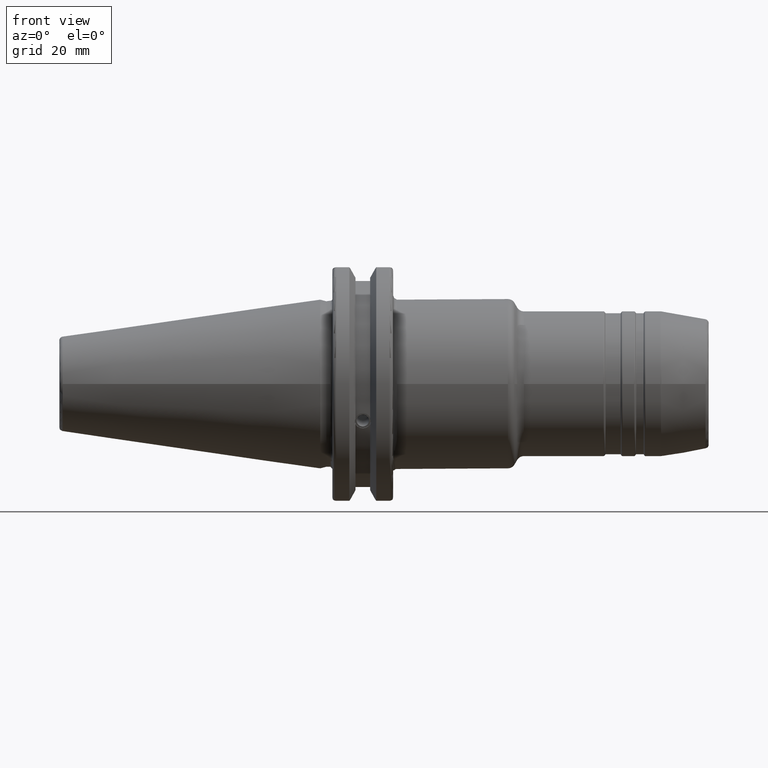
[diagram: clean part render]
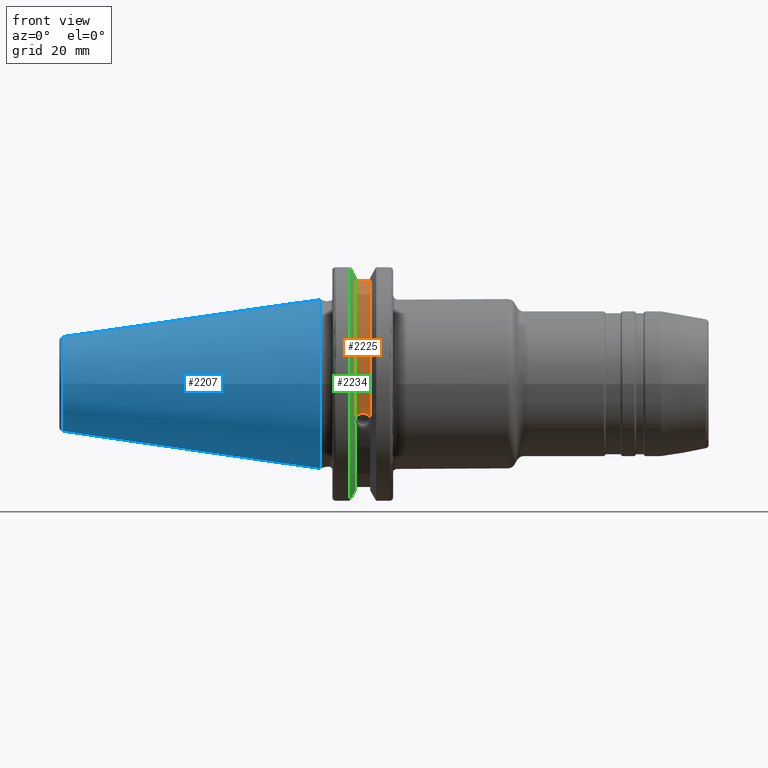
[diagram: same view with three faces highlighted in distinct colors, each labeled with its STEP entity id]
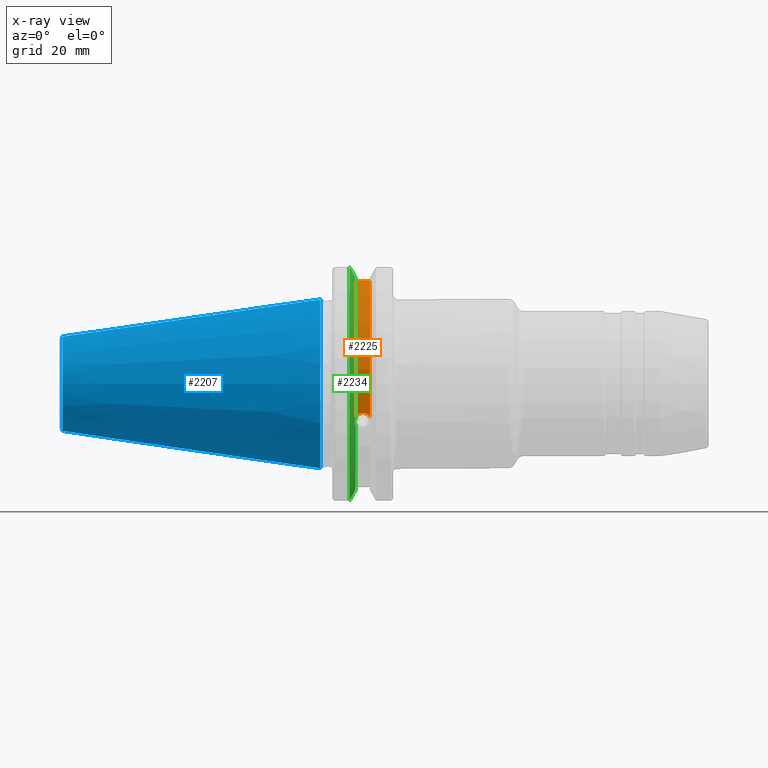
[diagram: x-ray of the same camera — body ghosted, the three highlighted faces saturated]
A machine part, front view with three faces highlighted in distinct colors.
The next image is the same camera in x-ray (body ghosted, the three faces saturated) — at least one of them is partly hidden behind the body in this view.
Their STEP definitions:

[orange] entity #2225 — the highlighted cylindrical surface (partial cylindrical patch) has radius 28.15 mm, axis along (1, 0, 0).
#145=B_SPLINE_CURVE_WITH_KNOTS('',3,(#3657,#3658,#3659,#3660,#3661,#3662,
#3663,#3664,#3665,#3666,#3667,#3668,#3669,#3670),.UNSPECIFIED.,.F.,.F.,
(4,2,2,2,2,2,4),(0.401639126382404,0.474814416953736,0.553950208498303,
0.63308600004287,0.712221791587437,0.791357583132004,0.864532873703336),
 .UNSPECIFIED.);
#267=FACE_OUTER_BOUND('',#388,.T.);
#388=EDGE_LOOP('',(#2034,#2035,#2036,#2037));
#477=LINE('',#4119,#582);
#582=VECTOR('',#3120,10.);
#783=CIRCLE('',#2544,28.15);
#784=CIRCLE('',#2545,28.15);
#899=VERTEX_POINT('',#3654);
#900=VERTEX_POINT('',#3656);
#1007=VERTEX_POINT('',#4116);
#1008=VERTEX_POINT('',#4118);
#1184=EDGE_CURVE('',#900,#899,#145,.T.);
#1324=EDGE_CURVE('',#1008,#1007,#477,.T.);
#1381=EDGE_CURVE('',#1008,#899,#783,.T.);
#1382=EDGE_CURVE('',#1007,#900,#784,.T.);
#2034=ORIENTED_EDGE('',*,*,#1184,.T.);
#2035=ORIENTED_EDGE('',*,*,#1381,.F.);
#2036=ORIENTED_EDGE('',*,*,#1324,.T.);
#2037=ORIENTED_EDGE('',*,*,#1382,.T.);
#2126=CYLINDRICAL_SURFACE('',#2543,28.15);
#2225=ADVANCED_FACE('',(#267),#2126,.T.);
#2543=AXIS2_PLACEMENT_3D('',#4279,#3240,#3241);
#2544=AXIS2_PLACEMENT_3D('',#4280,#3242,#3243);
#2545=AXIS2_PLACEMENT_3D('',#4281,#3244,#3245);
#3120=DIRECTION('',(-1.,0.,0.));
#3240=DIRECTION('center_axis',(1.,0.,0.));
#3241=DIRECTION('ref_axis',(0.,-0.887654187951484,0.46051063246378));
#3242=DIRECTION('center_axis',(1.,0.,0.));
#3243=DIRECTION('ref_axis',(0.,0.,-1.));
#3244=DIRECTION('center_axis',(1.,0.,0.));
#3245=DIRECTION('ref_axis',(0.,0.,-1.));
#3654=CARTESIAN_POINT('',(13.0491,-26.734714844398,-8.81348524641211));
#3656=CARTESIAN_POINT('',(9.2191,-26.734714844398,-8.81348524641212));
#3657=CARTESIAN_POINT('Ctrl Pts',(9.2191,-26.734714844398,-8.81348524641212));
#3658=CARTESIAN_POINT('Ctrl Pts',(9.32533057097183,-26.8086519721597,-8.58920529678291));
#3659=CARTESIAN_POINT('Ctrl Pts',(9.47682013770509,-26.8729987454904,-8.38416529997369));
#3660=CARTESIAN_POINT('Ctrl Pts',(9.83557062657411,-26.9778908791383,-8.04056861831091));
#3661=CARTESIAN_POINT('Ctrl Pts',(10.0716450112988,-27.0233016799732,-7.88512567185902));
#3662=CARTESIAN_POINT('Ctrl Pts',(10.5890125426388,-27.0826966800569,-7.6786444840004));
#3663=CARTESIAN_POINT('Ctrl Pts',(10.8703140281848,-27.0968804077294,-7.62768458768512));
#3664=CARTESIAN_POINT('Ctrl Pts',(11.3978859718152,-27.0968804077294,-7.62768458768512));
#3665=CARTESIAN_POINT('Ctrl Pts',(11.6791874573612,-27.0826966800569,-7.6786444840004));
#3666=CARTESIAN_POINT('Ctrl Pts',(12.1965549887012,-27.0233016799732,-7.88512567185902));
#3667=CARTESIAN_POINT('Ctrl Pts',(12.4326293734259,-26.9778908791383,-8.04056861831091));
#3668=CARTESIAN_POINT('Ctrl Pts',(12.7913798622949,-26.8729987454904,-8.38416529997369));
#3669=CARTESIAN_POINT('Ctrl Pts',(12.9428694290282,-26.8086519721597,-8.58920529678291));
#3670=CARTESIAN_POINT('Ctrl Pts',(13.0491,-26.734714844398,-8.81348524641211));
#4116=CARTESIAN_POINT('',(9.2191,-8.19,26.932255754021));
#4118=CARTESIAN_POINT('',(13.0491,-8.19,26.932255754021));
#4119=CARTESIAN_POINT('',(11.1341,-8.19,26.932255754021));
#4279=CARTESIAN_POINT('Origin',(11.1341,0.,0.));
#4280=CARTESIAN_POINT('Origin',(13.0491,0.,0.));
#4281=CARTESIAN_POINT('Origin',(9.2191,0.,0.));

[blue] entity #2207 — the highlighted conical surface has half-angle 8.297 deg.
#98=CONICAL_SURFACE('',#2516,17.2484375,0.144812498238939);
#249=FACE_OUTER_BOUND('',#370,.T.);
#370=EDGE_LOOP('',(#1946,#1947,#1948,#1949,#1950,#1951,#1952));
#486=LINE('',#4222,#591);
#591=VECTOR('',#3175,17.2484375);
#766=CIRCLE('',#2507,12.3966635780937);
#767=CIRCLE('',#2508,12.3966635780937);
#771=CIRCLE('',#2512,12.3966635780937);
#774=CIRCLE('',#2517,22.225);
#775=CIRCLE('',#2518,22.225);
#1018=VERTEX_POINT('',#4201);
#1019=VERTEX_POINT('',#4202);
#1020=VERTEX_POINT('',#4204);
#1025=VERTEX_POINT('',#4218);
#1026=VERTEX_POINT('',#4219);
#1345=EDGE_CURVE('',#1018,#1019,#766,.T.);
#1346=EDGE_CURVE('',#1019,#1020,#767,.T.);
#1350=EDGE_CURVE('',#1020,#1018,#771,.T.);
#1353=EDGE_CURVE('',#1025,#1026,#774,.T.);
#1354=EDGE_CURVE('',#1026,#1025,#775,.T.);
#1355=EDGE_CURVE('',#1026,#1019,#486,.T.);
#1946=ORIENTED_EDGE('',*,*,#1353,.F.);
#1947=ORIENTED_EDGE('',*,*,#1354,.F.);
#1948=ORIENTED_EDGE('',*,*,#1355,.T.);
#1949=ORIENTED_EDGE('',*,*,#1345,.F.);
#1950=ORIENTED_EDGE('',*,*,#1350,.F.);
#1951=ORIENTED_EDGE('',*,*,#1346,.F.);
#1952=ORIENTED_EDGE('',*,*,#1355,.F.);
#2207=ADVANCED_FACE('',(#249),#98,.T.);
#2507=AXIS2_PLACEMENT_3D('',#4203,#3151,#3152);
#2508=AXIS2_PLACEMENT_3D('',#4205,#3153,#3154);
#2512=AXIS2_PLACEMENT_3D('',#4211,#3161,#3162);
#2516=AXIS2_PLACEMENT_3D('',#4217,#3169,#3170);
#2517=AXIS2_PLACEMENT_3D('',#4220,#3171,#3172);
#2518=AXIS2_PLACEMENT_3D('',#4221,#3173,#3174);
#3151=DIRECTION('center_axis',(-1.,0.,0.));
#3152=DIRECTION('ref_axis',(0.,-1.,3.06161699786838E-17));
#3153=DIRECTION('center_axis',(-1.,0.,0.));
#3154=DIRECTION('ref_axis',(0.,-1.,3.06161699786838E-17));
#3161=DIRECTION('center_axis',(-1.,0.,0.));
#3162=DIRECTION('ref_axis',(0.,-1.,3.06161699786838E-17));
#3169=DIRECTION('center_axis',(1.,0.,0.));
#3170=DIRECTION('ref_axis',(0.,1.,0.));
#3171=DIRECTION('center_axis',(1.,0.,0.));
#3172=DIRECTION('ref_axis',(0.,0.,-1.));
#3173=DIRECTION('center_axis',(1.,0.,0.));
#3174=DIRECTION('ref_axis',(0.,0.,-1.));
#3175=DIRECTION('',(-0.989532981063282,0.144306893071729,1.76724974695192E-17));
#4201=CARTESIAN_POINT('',(-67.3943068930717,12.3966635780937,-3.79538359275475E-15));
#4202=CARTESIAN_POINT('',(-67.3943068930718,-12.3966635780937,-1.5181534371019E-15));
#4203=CARTESIAN_POINT('Origin',(-67.3943068930717,0.,-1.89769179637738E-15));
#4204=CARTESIAN_POINT('',(-67.3943068930717,-1.5181534371019E-15,12.3966635780937));
#4205=CARTESIAN_POINT('Origin',(-67.3943068930717,0.,-1.89769179637738E-15));
#4211=CARTESIAN_POINT('Origin',(-67.3943068930717,0.,-1.89769179637738E-15));
#4217=CARTESIAN_POINT('Origin',(-34.125,0.,0.));
#4218=CARTESIAN_POINT('',(0.,22.225,0.));
#4219=CARTESIAN_POINT('',(0.,-22.225,-2.72177751110499E-15));
#4220=CARTESIAN_POINT('Origin',(0.,0.,0.));
#4221=CARTESIAN_POINT('Origin',(0.,0.,0.));
#4222=CARTESIAN_POINT('',(-34.125,-17.2484375,-2.11232437746682E-15));

[green] entity #2234 — the highlighted conical surface has half-angle 60 deg.
#25=(
BOUNDED_CURVE()
B_SPLINE_CURVE(2,(#4113,#4114,#4115),.UNSPECIFIED.,.F.,.F.)
B_SPLINE_CURVE_WITH_KNOTS((3,3),(0.,0.276549142796136),.UNSPECIFIED.)
CURVE()
GEOMETRIC_REPRESENTATION_ITEM()
RATIONAL_B_SPLINE_CURVE((1.,1.00095203903316,1.00031614444813))
REPRESENTATION_ITEM('')
);
#26=(
BOUNDED_CURVE()
B_SPLINE_CURVE(2,(#4125,#4126,#4127),.UNSPECIFIED.,.F.,.F.)
B_SPLINE_CURVE_WITH_KNOTS((3,3),(0.0550586467392022,0.33160778953585),
 .UNSPECIFIED.)
CURVE()
GEOMETRIC_REPRESENTATION_ITEM()
RATIONAL_B_SPLINE_CURVE((1.00031614445148,1.00095203904325,1.))
REPRESENTATION_ITEM('')
);
#27=(
BOUNDED_CURVE()
B_SPLINE_CURVE(2,(#4160,#4161,#4162),.UNSPECIFIED.,.F.,.F.)
B_SPLINE_CURVE_WITH_KNOTS((3,3),(0.,0.0639048713676282),.UNSPECIFIED.)
CURVE()
GEOMETRIC_REPRESENTATION_ITEM()
RATIONAL_B_SPLINE_CURVE((1.,1.00028444218284,1.00047644010574))
REPRESENTATION_ITEM('')
);
#28=(
BOUNDED_CURVE()
B_SPLINE_CURVE(2,(#4168,#4169,#4170),.UNSPECIFIED.,.F.,.F.)
B_SPLINE_CURVE_WITH_KNOTS((3,3),(0.329353533631205,0.393258405001025),
 .UNSPECIFIED.)
CURVE()
GEOMETRIC_REPRESENTATION_ITEM()
RATIONAL_B_SPLINE_CURVE((1.00047644010572,1.00028444218283,1.))
REPRESENTATION_ITEM('')
);
#103=CONICAL_SURFACE('',#2559,30.3546886482472,1.0471975511966);
#146=B_SPLINE_CURVE_WITH_KNOTS('',3,(#3674,#3675,#3676,#3677,#3678,#3679,
#3680,#3681,#3682,#3683,#3684,#3685,#3686,#3687),.UNSPECIFIED.,.F.,.F.,
(4,2,2,2,2,2,4),(0.451995700189024,0.464547828547662,0.504528771685167,
0.544509714822672,0.584490657960178,0.624471601097683,0.63702372945632),
 .UNSPECIFIED.);
#276=FACE_OUTER_BOUND('',#399,.T.);
#399=EDGE_LOOP('',(#2082,#2083,#2084,#2085,#2086,#2087,#2088,#2089));
#729=CIRCLE('',#2429,28.9593772964944);
#764=CIRCLE('',#2501,31.75);
#790=CIRCLE('',#2560,28.9593772964944);
#901=VERTEX_POINT('',#3671);
#902=VERTEX_POINT('',#3673);
#922=VERTEX_POINT('',#3771);
#1005=VERTEX_POINT('',#4110);
#1006=VERTEX_POINT('',#4112);
#1009=VERTEX_POINT('',#4124);
#1013=VERTEX_POINT('',#4158);
#1014=VERTEX_POINT('',#4164);
#1186=EDGE_CURVE('',#902,#901,#146,.T.);
#1213=EDGE_CURVE('',#902,#922,#729,.T.);
#1322=EDGE_CURVE('',#1006,#1005,#25,.T.);
#1328=EDGE_CURVE('',#1009,#922,#26,.T.);
#1336=EDGE_CURVE('',#1013,#1005,#27,.T.);
#1338=EDGE_CURVE('',#1013,#1014,#764,.T.);
#1339=EDGE_CURVE('',#1009,#1014,#28,.T.);
#1391=EDGE_CURVE('',#1006,#901,#790,.T.);
#2082=ORIENTED_EDGE('',*,*,#1186,.T.);
#2083=ORIENTED_EDGE('',*,*,#1391,.F.);
#2084=ORIENTED_EDGE('',*,*,#1322,.T.);
#2085=ORIENTED_EDGE('',*,*,#1336,.F.);
#2086=ORIENTED_EDGE('',*,*,#1338,.T.);
#2087=ORIENTED_EDGE('',*,*,#1339,.F.);
#2088=ORIENTED_EDGE('',*,*,#1328,.T.);
#2089=ORIENTED_EDGE('',*,*,#1213,.F.);
#2234=ADVANCED_FACE('',(#276),#103,.T.);
#2429=AXIS2_PLACEMENT_3D('',#3772,#2940,#2941);
#2501=AXIS2_PLACEMENT_3D('',#4166,#3138,#3139);
#2559=AXIS2_PLACEMENT_3D('',#4302,#3275,#3276);
#2560=AXIS2_PLACEMENT_3D('',#4303,#3277,#3278);
#2940=DIRECTION('center_axis',(1.,0.,0.));
#2941=DIRECTION('ref_axis',(0.,0.,-1.));
#3138=DIRECTION('center_axis',(1.,0.,0.));
#3139=DIRECTION('ref_axis',(0.,0.,-1.));
#3275=DIRECTION('center_axis',(-1.,0.,0.));
#3276=DIRECTION('ref_axis',(0.,-1.,-1.22464679914735E-16));
#3277=DIRECTION('center_axis',(1.,0.,0.));
#3278=DIRECTION('ref_axis',(0.,0.,-1.));
#3671=CARTESIAN_POINT('',(9.2191,-27.4956274489925,-9.09043478536245));
#3673=CARTESIAN_POINT('',(9.2191,-26.9060914640648,-10.7101715919071));
#3674=CARTESIAN_POINT('Ctrl Pts',(9.2191,-26.9060914640648,-10.7101715919071));
#3675=CARTESIAN_POINT('Ctrl Pts',(9.20497959280038,-26.9406927482839,-10.6893765730703));
#3676=CARTESIAN_POINT('Ctrl Pts',(9.19150701821434,-26.9744191989197,-10.6676007180673));
#3677=CARTESIAN_POINT('Ctrl Pts',(9.13811855884095,-27.1113422433189,-10.5723885976054));
#3678=CARTESIAN_POINT('Ctrl Pts',(9.09998029158246,-27.2180531796526,-10.4801333026531));
#3679=CARTESIAN_POINT('Ctrl Pts',(9.04778935539424,-27.3968610665578,-10.2639559818059));
#3680=CARTESIAN_POINT('Ctrl Pts',(9.0341,-27.4684373304961,-10.139516340139));
#3681=CARTESIAN_POINT('Ctrl Pts',(9.0341,-27.559599249844,-9.8890510252165));
#3682=CARTESIAN_POINT('Ctrl Pts',(9.04778935539424,-27.5847569104122,-9.74771639360671));
#3683=CARTESIAN_POINT('Ctrl Pts',(9.09998029158246,-27.5867382255984,-9.46717946402648));
#3684=CARTESIAN_POINT('Ctrl Pts',(9.13811855884095,-27.5642934663232,-9.32791534028656));
#3685=CARTESIAN_POINT('Ctrl Pts',(9.19150701821434,-27.5206055003512,-9.16696618806877));
#3686=CARTESIAN_POINT('Ctrl Pts',(9.20497959280038,-27.5087667900418,-9.12860597076218));
#3687=CARTESIAN_POINT('Ctrl Pts',(9.2191,-27.4956274489925,-9.09043478536245));
#3771=CARTESIAN_POINT('',(9.2191,-8.19,-27.7771386827498));
#3772=CARTESIAN_POINT('Origin',(9.2191,0.,0.));
#4110=CARTESIAN_POINT('',(7.88668530351257,-8.19,30.1755016258903));
#4112=CARTESIAN_POINT('',(9.2191,-8.19,27.7771386827498));
#4113=CARTESIAN_POINT('Ctrl Pts',(9.2191,-8.19,27.7771386827498));
#4114=CARTESIAN_POINT('Ctrl Pts',(8.58046356152393,-8.19,28.9303689539705));
#4115=CARTESIAN_POINT('Ctrl Pts',(7.88668530351257,-8.19,30.1755016258903));
#4124=CARTESIAN_POINT('',(7.88668530351256,-8.19,-30.1755016258903));
#4125=CARTESIAN_POINT('Ctrl Pts',(7.88668530351256,-8.19,-30.1755016258903));
#4126=CARTESIAN_POINT('Ctrl Pts',(8.5804635615235,-8.19,-28.9303689539712));
#4127=CARTESIAN_POINT('Ctrl Pts',(9.2191,-8.19,-27.7771386827498));
#4158=CARTESIAN_POINT('',(7.60793323092436,-8.67204822802685,30.5427254764662));
#4160=CARTESIAN_POINT('Ctrl Pts',(7.60793323092436,-8.67204822802686,30.5427254764662));
#4161=CARTESIAN_POINT('Ctrl Pts',(7.74899148121626,-8.42917748262648,30.357706789263));
#4162=CARTESIAN_POINT('Ctrl Pts',(7.88668530351257,-8.19,30.1755016258903));
#4164=CARTESIAN_POINT('',(7.60793323092436,-8.67204822802685,-30.5427254764662));
#4166=CARTESIAN_POINT('Origin',(7.60793323092436,0.,0.));
#4168=CARTESIAN_POINT('Ctrl Pts',(7.88668530351256,-8.19,-30.1755016258903));
#4169=CARTESIAN_POINT('Ctrl Pts',(7.74899148121159,-8.42917748263467,-30.3577067892692));
#4170=CARTESIAN_POINT('Ctrl Pts',(7.60793323092435,-8.67204822802687,-30.5427254764662));
#4302=CARTESIAN_POINT('Origin',(8.41351661546218,0.,0.));
#4303=CARTESIAN_POINT('Origin',(9.2191,0.,0.));